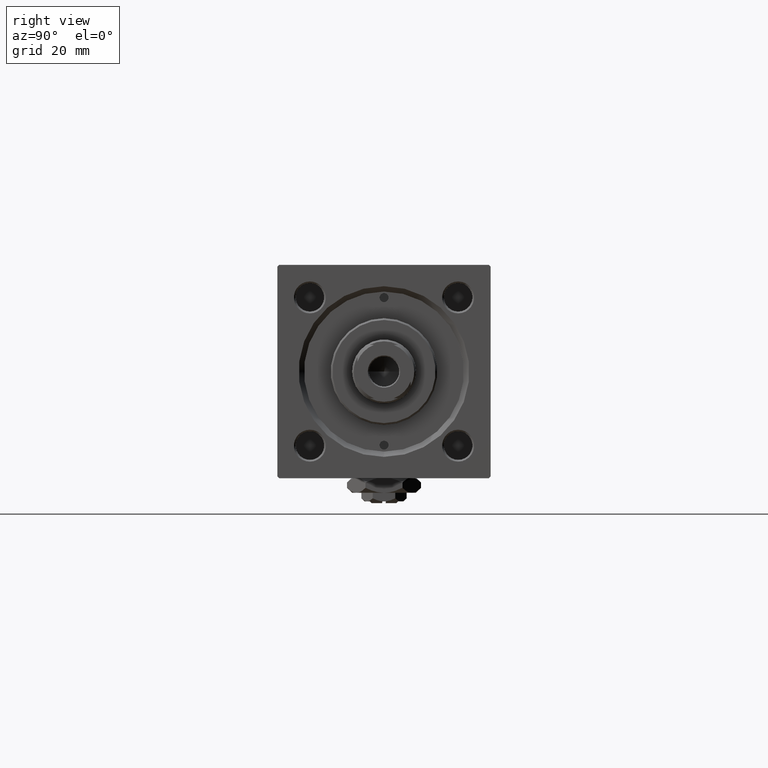
[diagram: clean part render]
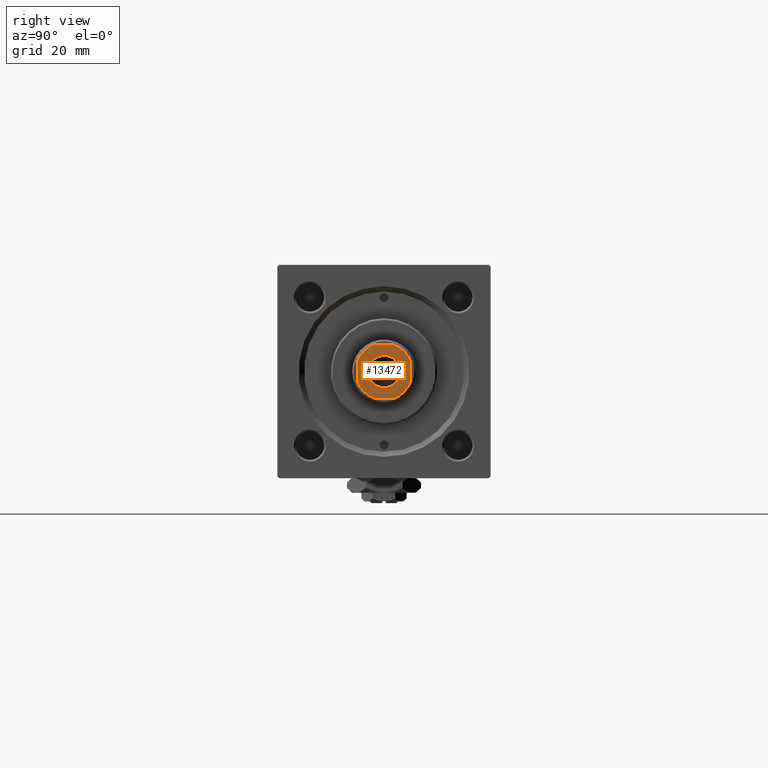
[diagram: same view with one face highlighted and labeled with its STEP entity id]
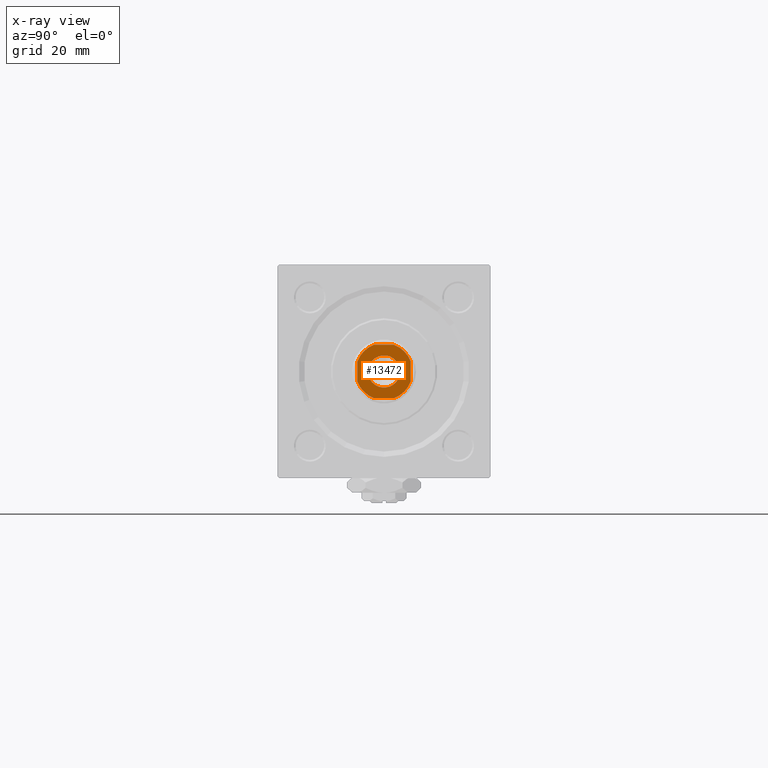
[diagram: x-ray of the same camera — body ghosted, the highlighted face saturated]
A machine part, right view. The second image highlights one B-rep face of the part: STEP entity #13472.
The next image is the same camera in x-ray: the body ghosted, the highlighted face saturated — about 0% of this face is hidden behind the body in this view.
In plain terms, the highlighted planar face has unit normal (1, 0, 0).
Its self-contained STEP definition (entity closure, byte-faithful):
#232 = CARTESIAN_POINT ( 'NONE',  ( 2.783882181415129331, 7.499999999999999112, 136.0000000000000000 ) ) ;
#2323 = LINE ( 'NONE', #35189, #11180 ) ;
#2557 = DIRECTION ( 'NONE',  ( 1.000000000000000000, 0.000000000000000000, 0.000000000000000000 ) ) ;
#3452 = CARTESIAN_POINT ( 'NONE',  ( -2.783882181414960577, 7.499999999999999112, 136.0000000000000000 ) ) ;
#5569 = DIRECTION ( 'NONE',  ( 1.000000000000000000, 0.000000000000000000, 0.000000000000000000 ) ) ;
#6492 = VERTEX_POINT ( 'NONE', #23390 ) ;
#7565 = EDGE_CURVE ( 'NONE', #39906, #25984, #9105, .T. ) ;
#7985 = CIRCLE ( 'NONE', #34254, 4.549999999999970512 ) ;
#8025 = DIRECTION ( 'NONE',  ( 0.000000000000000000, -0.000000000000000000, -1.000000000000000000 ) ) ;
#8055 = VERTEX_POINT ( 'NONE', #35017 ) ;
#8558 = DIRECTION ( 'NONE',  ( 1.000000000000000000, 0.000000000000000000, 0.000000000000000000 ) ) ;
#8853 = VERTEX_POINT ( 'NONE', #23992 ) ;
#9105 = CIRCLE ( 'NONE', #50607, 7.999999999999979572 ) ;
#9956 = CARTESIAN_POINT ( 'NONE',  ( -2.783882181414952139, -7.500000000000000000, 136.0000000000000000 ) ) ;
#10002 = PLANE ( 'NONE',  #27106 ) ;
#10617 = ORIENTED_EDGE ( 'NONE', *, *, #41662, .T. ) ;
#10988 = VECTOR ( 'NONE', #39491, 1000.000000000000000 ) ;
#11180 = VECTOR ( 'NONE', #18497, 1000.000000000000000 ) ;
#11436 = CIRCLE ( 'NONE', #41069, 7.999999999999981348 ) ;
#11625 = ORIENTED_EDGE ( 'NONE', *, *, #51272, .T. ) ;
#11713 = DIRECTION ( 'NONE',  ( -0.000000000000000000, 0.000000000000000000, 1.000000000000000000 ) ) ;
#12294 = ORIENTED_EDGE ( 'NONE', *, *, #22460, .T. ) ;
#13472 = ADVANCED_FACE ( 'NONE', ( #26169, #21941 ), #10002, .T. ) ;
#14759 = CARTESIAN_POINT ( 'NONE',  ( 0.000000000000000000, 0.000000000000000000, 136.0000000000000000 ) ) ;
#15335 = DIRECTION ( 'NONE',  ( 1.000000000000000000, 0.000000000000000000, 0.000000000000000000 ) ) ;
#15619 = DIRECTION ( 'NONE',  ( 1.000000000000000000, 0.000000000000000000, 0.000000000000000000 ) ) ;
#16212 = VERTEX_POINT ( 'NONE', #47492 ) ;
#16423 = DIRECTION ( 'NONE',  ( -0.000000000000000000, 0.000000000000000000, 1.000000000000000000 ) ) ;
#17006 = ORIENTED_EDGE ( 'NONE', *, *, #7565, .T. ) ;
#17680 = CIRCLE ( 'NONE', #30354, 4.549999999999970512 ) ;
#18497 = DIRECTION ( 'NONE',  ( -1.000000000000000000, -1.156482317317871478E-16, -0.000000000000000000 ) ) ;
#19614 = CARTESIAN_POINT ( 'NONE',  ( 0.000000000000000000, 0.000000000000000000, 136.0000000000000000 ) ) ;
#21941 = FACE_OUTER_BOUND ( 'NONE', #34332, .T. ) ;
#22370 = EDGE_CURVE ( 'NONE', #6492, #8055, #38416, .T. ) ;
#22460 = EDGE_CURVE ( 'NONE', #25984, #31140, #43687, .T. ) ;
#22772 = VERTEX_POINT ( 'NONE', #35684 ) ;
#22903 = AXIS2_PLACEMENT_3D ( 'NONE', #42641, #25960, #5569 ) ;
#23100 = CARTESIAN_POINT ( 'NONE',  ( -7.499999999999997335, -2.783882181414957468, 136.0000000000000000 ) ) ;
#23161 = CARTESIAN_POINT ( 'NONE',  ( 2.783882181415132440, -7.500000000000000000, 136.0000000000000000 ) ) ;
#23390 = CARTESIAN_POINT ( 'NONE',  ( 7.500000000000000888, -2.783882181415129331, 136.0000000000000000 ) ) ;
#23992 = CARTESIAN_POINT ( 'NONE',  ( 4.549999999999970512, 0.000000000000000000, 136.0000000000000000 ) ) ;
#24689 = ORIENTED_EDGE ( 'NONE', *, *, #29071, .T. ) ;
#25960 = DIRECTION ( 'NONE',  ( -0.000000000000000000, 0.000000000000000000, 1.000000000000000000 ) ) ;
#25984 = VERTEX_POINT ( 'NONE', #9956 ) ;
#26169 = FACE_BOUND ( 'NONE', #35273, .T. ) ;
#27106 = AXIS2_PLACEMENT_3D ( 'NONE', #14759, #42084, #2557 ) ;
#27319 = LINE ( 'NONE', #42951, #10988 ) ;
#27517 = AXIS2_PLACEMENT_3D ( 'NONE', #32382, #11713, #44826 ) ;
#27810 = CARTESIAN_POINT ( 'NONE',  ( 0.000000000000000000, 0.000000000000000000, 136.0000000000000000 ) ) ;
#29071 = EDGE_CURVE ( 'NONE', #8853, #16212, #17680, .T. ) ;
#30354 = AXIS2_PLACEMENT_3D ( 'NONE', #44857, #8025, #8558 ) ;
#31140 = VERTEX_POINT ( 'NONE', #23161 ) ;
#32382 = CARTESIAN_POINT ( 'NONE',  ( 0.000000000000000000, 0.000000000000000000, 136.0000000000000000 ) ) ;
#32598 = CIRCLE ( 'NONE', #27517, 8.000000000000040856 ) ;
#32997 = DIRECTION ( 'NONE',  ( -0.000000000000000000, 0.000000000000000000, 1.000000000000000000 ) ) ;
#34254 = AXIS2_PLACEMENT_3D ( 'NONE', #27810, #51675, #15619 ) ;
#34332 = EDGE_LOOP ( 'NONE', ( #48565, #51606, #10617, #43247, #46829, #17006, #12294, #47709 ) ) ;
#35017 = CARTESIAN_POINT ( 'NONE',  ( 7.500000000000000888, 2.783882181415126222, 136.0000000000000000 ) ) ;
#35189 = CARTESIAN_POINT ( 'NONE',  ( -7.500000000000000000, 7.499999999999998224, 136.0000000000000000 ) ) ;
#35273 = EDGE_LOOP ( 'NONE', ( #24689, #11625 ) ) ;
#35684 = CARTESIAN_POINT ( 'NONE',  ( -7.499999999999999112, 2.783882181414961021, 136.0000000000000000 ) ) ;
#35790 = EDGE_CURVE ( 'NONE', #22772, #39906, #27319, .T. ) ;
#36444 = DIRECTION ( 'NONE',  ( 1.000000000000000000, 0.000000000000000000, 0.000000000000000000 ) ) ;
#37502 = CARTESIAN_POINT ( 'NONE',  ( 0.000000000000000000, 0.000000000000000000, 136.0000000000000000 ) ) ;
#37523 = VERTEX_POINT ( 'NONE', #3452 ) ;
#38016 = EDGE_CURVE ( 'NONE', #31140, #6492, #44050, .T. ) ;
#38416 = LINE ( 'NONE', #47146, #41712 ) ;
#39491 = DIRECTION ( 'NONE',  ( 1.156482317317871725E-16, -1.000000000000000000, 0.000000000000000000 ) ) ;
#39906 = VERTEX_POINT ( 'NONE', #23100 ) ;
#41069 = AXIS2_PLACEMENT_3D ( 'NONE', #19614, #16423, #51692 ) ;
#41662 = EDGE_CURVE ( 'NONE', #43407, #37523, #2323, .T. ) ;
#41712 = VECTOR ( 'NONE', #46620, 1000.000000000000000 ) ;
#42084 = DIRECTION ( 'NONE',  ( -0.000000000000000000, 0.000000000000000000, 1.000000000000000000 ) ) ;
#42641 = CARTESIAN_POINT ( 'NONE',  ( 0.000000000000000000, 0.000000000000000000, 136.0000000000000000 ) ) ;
#42951 = CARTESIAN_POINT ( 'NONE',  ( -7.500000000000000000, 7.499999999999998224, 136.0000000000000000 ) ) ;
#43247 = ORIENTED_EDGE ( 'NONE', *, *, #48772, .T. ) ;
#43407 = VERTEX_POINT ( 'NONE', #232 ) ;
#43687 = LINE ( 'NONE', #51654, #49322 ) ;
#44050 = CIRCLE ( 'NONE', #22903, 8.000000000000042633 ) ;
#44826 = DIRECTION ( 'NONE',  ( 1.000000000000000000, 0.000000000000000000, 0.000000000000000000 ) ) ;
#44857 = CARTESIAN_POINT ( 'NONE',  ( 0.000000000000000000, 0.000000000000000000, 136.0000000000000000 ) ) ;
#46620 = DIRECTION ( 'NONE',  ( -1.156482317317871478E-16, 1.000000000000000000, -0.000000000000000000 ) ) ;
#46829 = ORIENTED_EDGE ( 'NONE', *, *, #35790, .T. ) ;
#47146 = CARTESIAN_POINT ( 'NONE',  ( 7.500000000000000000, 7.500000000000000000, 136.0000000000000000 ) ) ;
#47492 = CARTESIAN_POINT ( 'NONE',  ( -4.549999999999970512, 5.572142936120421828E-16, 136.0000000000000000 ) ) ;
#47709 = ORIENTED_EDGE ( 'NONE', *, *, #38016, .T. ) ;
#48445 = EDGE_CURVE ( 'NONE', #8055, #43407, #32598, .T. ) ;
#48565 = ORIENTED_EDGE ( 'NONE', *, *, #22370, .T. ) ;
#48772 = EDGE_CURVE ( 'NONE', #37523, #22772, #11436, .T. ) ;
#49322 = VECTOR ( 'NONE', #15335, 1000.000000000000000 ) ;
#50607 = AXIS2_PLACEMENT_3D ( 'NONE', #37502, #32997, #36444 ) ;
#51272 = EDGE_CURVE ( 'NONE', #16212, #8853, #7985, .T. ) ;
#51606 = ORIENTED_EDGE ( 'NONE', *, *, #48445, .T. ) ;
#51654 = CARTESIAN_POINT ( 'NONE',  ( -7.499999999999998224, -7.500000000000000000, 136.0000000000000000 ) ) ;
#51675 = DIRECTION ( 'NONE',  ( 0.000000000000000000, -0.000000000000000000, -1.000000000000000000 ) ) ;
#51692 = DIRECTION ( 'NONE',  ( 1.000000000000000000, 0.000000000000000000, 0.000000000000000000 ) ) ;